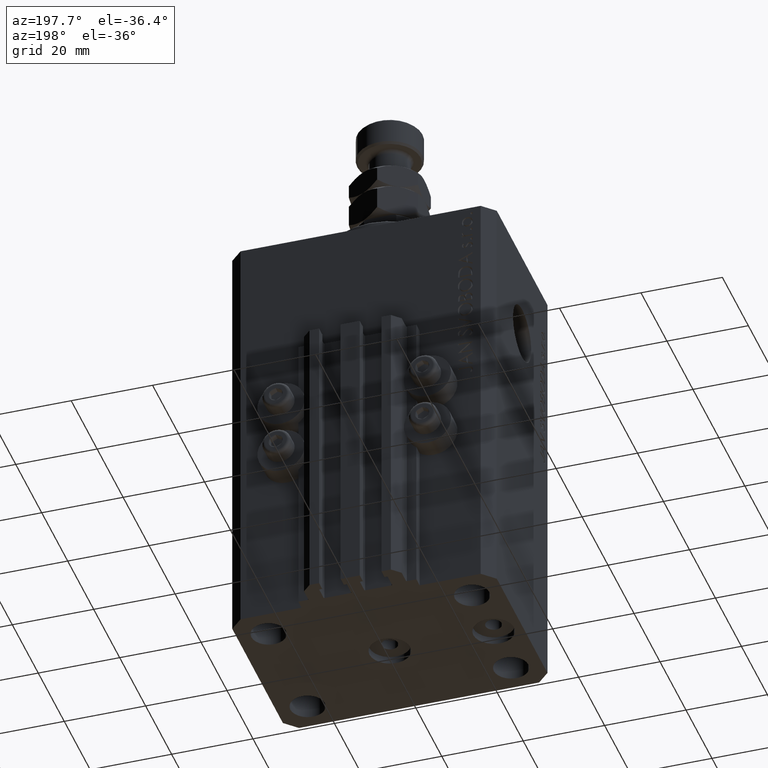
[diagram: clean part render]
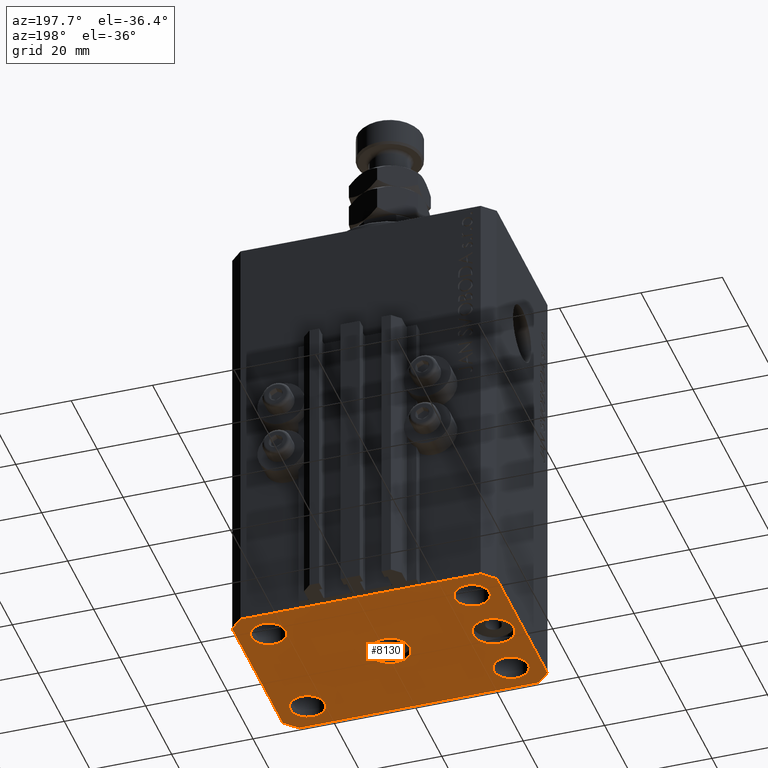
[diagram: same view with one face highlighted and labeled with its STEP entity id]
A machine part, auxiliary view. The second image highlights one B-rep face of the part: STEP entity #8130.
In plain terms, the highlighted planar face has unit normal (0, 0, 1).
Its self-contained STEP definition (entity closure, byte-faithful):
#422 = DIRECTION ( 'NONE',  ( 0.000000000000000000, 0.000000000000000000, -1.000000000000000000 ) ) ;
#424 = VECTOR ( 'NONE', #4902, 1000.000000000000000 ) ;
#497 = ORIENTED_EDGE ( 'NONE', *, *, #45855, .F. ) ;
#642 = AXIS2_PLACEMENT_3D ( 'NONE', #1286, #35193, #20351 ) ;
#889 = VERTEX_POINT ( 'NONE', #22023 ) ;
#1133 = EDGE_CURVE ( 'NONE', #28121, #46459, #36263, .T. ) ;
#1286 = CARTESIAN_POINT ( 'NONE',  ( 25.00000000000000000, 14.99999999999999289, -107.0000000000000000 ) ) ;
#1429 = CARTESIAN_POINT ( 'NONE',  ( 32.49999999999651124, -19.49999999999949196, -107.0000000000000000 ) ) ;
#2686 = AXIS2_PLACEMENT_3D ( 'NONE', #40889, #25792, #6989 ) ;
#2697 = CIRCLE ( 'NONE', #26411, 4.999999999996659561 ) ;
#2769 = CIRCLE ( 'NONE', #48605, 4.250000000021375790 ) ;
#2807 = VERTEX_POINT ( 'NONE', #6126 ) ;
#2899 = VERTEX_POINT ( 'NONE', #18471 ) ;
#2985 = ORIENTED_EDGE ( 'NONE', *, *, #37086, .F. ) ;
#3061 = DIRECTION ( 'NONE',  ( -1.000000000000000000, 0.000000000000000000, 0.000000000000000000 ) ) ;
#3132 = CARTESIAN_POINT ( 'NONE',  ( -32.49999999999650413, -19.49999999999949907, -107.0000000000000000 ) ) ;
#3505 = AXIS2_PLACEMENT_3D ( 'NONE', #26926, #31376, #12804 ) ;
#3514 = DIRECTION ( 'NONE',  ( -0.000000000000000000, -0.000000000000000000, -1.000000000000000000 ) ) ;
#3651 = PLANE ( 'NONE',  #16138 ) ;
#3761 = DIRECTION ( 'NONE',  ( 1.000000000000000000, 0.000000000000000000, 0.000000000000000000 ) ) ;
#4130 = DIRECTION ( 'NONE',  ( 1.000000000000000000, 0.000000000000000000, -0.000000000000000000 ) ) ;
#4237 = DIRECTION ( 'NONE',  ( -0.000000000000000000, -0.000000000000000000, -1.000000000000000000 ) ) ;
#4320 = CIRCLE ( 'NONE', #3505, 4.999999999996659561 ) ;
#4368 = LINE ( 'NONE', #46683, #36732 ) ;
#4391 = CARTESIAN_POINT ( 'NONE',  ( 0.000000000000000000, 0.000000000000000000, -107.0000000000000000 ) ) ;
#4505 = CARTESIAN_POINT ( 'NONE',  ( 29.49999999999650413, -22.49999999999949196, -107.0000000000000000 ) ) ;
#4902 = DIRECTION ( 'NONE',  ( -1.000000000000000000, -3.528251137580330676E-16, 0.000000000000000000 ) ) ;
#4973 = EDGE_LOOP ( 'NONE', ( #29562, #27575 ) ) ;
#5045 = ORIENTED_EDGE ( 'NONE', *, *, #11031, .F. ) ;
#5646 = DIRECTION ( 'NONE',  ( 1.000000000000000000, 0.000000000000000000, 0.000000000000000000 ) ) ;
#6082 = DIRECTION ( 'NONE',  ( 0.7071067811865483499, 0.7071067811865466846, 0.000000000000000000 ) ) ;
#6126 = CARTESIAN_POINT ( 'NONE',  ( -32.49999999999650413, 19.49999999999949907, -107.0000000000000000 ) ) ;
#6354 = LINE ( 'NONE', #16737, #6401 ) ;
#6401 = VECTOR ( 'NONE', #16980, 1000.000000000000000 ) ;
#6729 = VERTEX_POINT ( 'NONE', #27789 ) ;
#6989 = DIRECTION ( 'NONE',  ( 1.000000000000000000, 0.000000000000000000, 0.000000000000000000 ) ) ;
#7362 = FACE_BOUND ( 'NONE', #48224, .T. ) ;
#7616 = FACE_BOUND ( 'NONE', #44017, .T. ) ;
#7667 = EDGE_LOOP ( 'NONE', ( #8278, #16094 ) ) ;
#7860 = FACE_BOUND ( 'NONE', #4973, .T. ) ;
#8130 = ADVANCED_FACE ( 'NONE', ( #22704, #7860, #44990, #37557, #7616, #7362, #22939 ), #3651, .F. ) ;
#8278 = ORIENTED_EDGE ( 'NONE', *, *, #10065, .F. ) ;
#9142 = CIRCLE ( 'NONE', #9931, 4.250000000040370374 ) ;
#9931 = AXIS2_PLACEMENT_3D ( 'NONE', #38184, #11472, #45377 ) ;
#9990 = ORIENTED_EDGE ( 'NONE', *, *, #31014, .F. ) ;
#10065 = EDGE_CURVE ( 'NONE', #24839, #14363, #39554, .T. ) ;
#10337 = CARTESIAN_POINT ( 'NONE',  ( 32.49999999999702993, 19.49999999999945999, -107.0000000000000000 ) ) ;
#10344 = AXIS2_PLACEMENT_3D ( 'NONE', #4391, #422, #26905 ) ;
#10517 = CARTESIAN_POINT ( 'NONE',  ( 29.49999999999707967, 22.49999999999952038, -107.0000000000000000 ) ) ;
#10667 = VERTEX_POINT ( 'NONE', #25763 ) ;
#10959 = DIRECTION ( 'NONE',  ( 0.000000000000000000, 0.000000000000000000, -1.000000000000000000 ) ) ;
#11031 = EDGE_CURVE ( 'NONE', #889, #37878, #37993, .T. ) ;
#11076 = DIRECTION ( 'NONE',  ( 0.000000000000000000, 0.000000000000000000, 1.000000000000000000 ) ) ;
#11234 = CARTESIAN_POINT ( 'NONE',  ( -29.25000000002137668, 14.99999999999999645, -107.0000000000000000 ) ) ;
#11288 = LINE ( 'NONE', #3132, #30432 ) ;
#11353 = CIRCLE ( 'NONE', #20035, 4.249999999957291053 ) ;
#11444 = ORIENTED_EDGE ( 'NONE', *, *, #46043, .F. ) ;
#11472 = DIRECTION ( 'NONE',  ( -0.000000000000000000, -0.000000000000000000, -1.000000000000000000 ) ) ;
#12068 = CARTESIAN_POINT ( 'NONE',  ( -30.49999999999665690, 0.000000000000000000, -107.0000000000000000 ) ) ;
#12804 = DIRECTION ( 'NONE',  ( -1.000000000000000000, 0.000000000000000000, 0.000000000000000000 ) ) ;
#13558 = EDGE_CURVE ( 'NONE', #47391, #36028, #4320, .T. ) ;
#14184 = CARTESIAN_POINT ( 'NONE',  ( 0.000000000000000000, 0.000000000000000000, -107.0000000000000000 ) ) ;
#14363 = VERTEX_POINT ( 'NONE', #34969 ) ;
#14578 = CARTESIAN_POINT ( 'NONE',  ( 20.75000000004271072, 14.99999999999999289, -107.0000000000000000 ) ) ;
#14686 = VECTOR ( 'NONE', #36832, 1000.000000000000000 ) ;
#15886 = EDGE_CURVE ( 'NONE', #46459, #48554, #6354, .T. ) ;
#16087 = CARTESIAN_POINT ( 'NONE',  ( -29.49999999999650413, -22.49999999999949907, -107.0000000000000000 ) ) ;
#16094 = ORIENTED_EDGE ( 'NONE', *, *, #17459, .F. ) ;
#16127 = VECTOR ( 'NONE', #36372, 1000.000000000000000 ) ;
#16138 = AXIS2_PLACEMENT_3D ( 'NONE', #26892, #11076, #4130 ) ;
#16380 = ORIENTED_EDGE ( 'NONE', *, *, #42323, .F. ) ;
#16505 = ORIENTED_EDGE ( 'NONE', *, *, #31089, .F. ) ;
#16560 = CARTESIAN_POINT ( 'NONE',  ( -29.49999999999650413, 22.49999999999949907, -107.0000000000000000 ) ) ;
#16737 = CARTESIAN_POINT ( 'NONE',  ( 32.49999999999651124, -19.49999999999949196, -107.0000000000000000 ) ) ;
#16770 = CARTESIAN_POINT ( 'NONE',  ( 25.00000000000000000, 14.99999999999999289, -107.0000000000000000 ) ) ;
#16980 = DIRECTION ( 'NONE',  ( 1.334402673828349134E-14, 1.000000000000000000, 0.000000000000000000 ) ) ;
#17459 = EDGE_CURVE ( 'NONE', #14363, #24839, #29586, .T. ) ;
#17782 = EDGE_LOOP ( 'NONE', ( #36913, #5045 ) ) ;
#18471 = CARTESIAN_POINT ( 'NONE',  ( 29.24999999995729283, 14.99999999999999289, -107.0000000000000000 ) ) ;
#18864 = DIRECTION ( 'NONE',  ( -1.000000000000000000, 0.000000000000000000, 0.000000000000000000 ) ) ;
#20035 = AXIS2_PLACEMENT_3D ( 'NONE', #16770, #38821, #5646 ) ;
#20087 = AXIS2_PLACEMENT_3D ( 'NONE', #14184, #10959, #18864 ) ;
#20351 = DIRECTION ( 'NONE',  ( 1.000000000000000000, 0.000000000000000000, 0.000000000000000000 ) ) ;
#20707 = EDGE_LOOP ( 'NONE', ( #21821, #11444 ) ) ;
#21096 = ORIENTED_EDGE ( 'NONE', *, *, #36325, .F. ) ;
#21238 = EDGE_CURVE ( 'NONE', #6729, #41279, #9142, .T. ) ;
#21649 = VECTOR ( 'NONE', #29363, 1000.000000000000114 ) ;
#21821 = ORIENTED_EDGE ( 'NONE', *, *, #21238, .F. ) ;
#22023 = CARTESIAN_POINT ( 'NONE',  ( 5.000000000000000000, 6.123233995736765296E-16, -107.0000000000000000 ) ) ;
#22704 = FACE_BOUND ( 'NONE', #17782, .T. ) ;
#22809 = CARTESIAN_POINT ( 'NONE',  ( -24.99999999999999289, -15.00000000000000355, -107.0000000000000000 ) ) ;
#22939 = FACE_OUTER_BOUND ( 'NONE', #36845, .T. ) ;
#23506 = EDGE_CURVE ( 'NONE', #2899, #29059, #25144, .T. ) ;
#23682 = VERTEX_POINT ( 'NONE', #16560 ) ;
#23711 = CARTESIAN_POINT ( 'NONE',  ( 29.49999999999707967, 22.49999999999952038, -107.0000000000000000 ) ) ;
#24250 = DIRECTION ( 'NONE',  ( -0.000000000000000000, -0.000000000000000000, -1.000000000000000000 ) ) ;
#24494 = CARTESIAN_POINT ( 'NONE',  ( 29.24999999997631051, -15.00000000000000355, -107.0000000000000000 ) ) ;
#24787 = EDGE_CURVE ( 'NONE', #32062, #25263, #28200, .T. ) ;
#24839 = VERTEX_POINT ( 'NONE', #24494 ) ;
#25129 = CARTESIAN_POINT ( 'NONE',  ( 29.49999999999650413, -22.49999999999949196, -107.0000000000000000 ) ) ;
#25144 = CIRCLE ( 'NONE', #642, 4.249999999957291053 ) ;
#25263 = VERTEX_POINT ( 'NONE', #11234 ) ;
#25763 = CARTESIAN_POINT ( 'NONE',  ( -32.49999999999650413, -19.49999999999949907, -107.0000000000000000 ) ) ;
#25792 = DIRECTION ( 'NONE',  ( -0.000000000000000000, -0.000000000000000000, -1.000000000000000000 ) ) ;
#25975 = CARTESIAN_POINT ( 'NONE',  ( -29.25000000004036593, -15.00000000000000355, -107.0000000000000000 ) ) ;
#26411 = AXIS2_PLACEMENT_3D ( 'NONE', #33005, #29784, #3061 ) ;
#26653 = VERTEX_POINT ( 'NONE', #16087 ) ;
#26721 = CARTESIAN_POINT ( 'NONE',  ( 24.99999999999999289, -15.00000000000000355, -107.0000000000000000 ) ) ;
#26892 = CARTESIAN_POINT ( 'NONE',  ( 0.000000000000000000, 0.000000000000000000, -107.0000000000000000 ) ) ;
#26905 = DIRECTION ( 'NONE',  ( -1.000000000000000000, 0.000000000000000000, 0.000000000000000000 ) ) ;
#26926 = CARTESIAN_POINT ( 'NONE',  ( -25.50000000000000000, 0.000000000000000000, -107.0000000000000000 ) ) ;
#27044 = VERTEX_POINT ( 'NONE', #10517 ) ;
#27544 = VECTOR ( 'NONE', #6082, 1000.000000000000000 ) ;
#27575 = ORIENTED_EDGE ( 'NONE', *, *, #13558, .F. ) ;
#27789 = CARTESIAN_POINT ( 'NONE',  ( -20.74999999995962341, -15.00000000000000355, -107.0000000000000000 ) ) ;
#27859 = DIRECTION ( 'NONE',  ( 0.000000000000000000, -1.000000000000000000, 0.000000000000000000 ) ) ;
#28121 = VERTEX_POINT ( 'NONE', #4505 ) ;
#28200 = CIRCLE ( 'NONE', #31381, 4.250000000021375790 ) ;
#28589 = CARTESIAN_POINT ( 'NONE',  ( 32.49999999999702993, 19.49999999999945999, -107.0000000000000000 ) ) ;
#29059 = VERTEX_POINT ( 'NONE', #14578 ) ;
#29363 = DIRECTION ( 'NONE',  ( -0.7071067811865474617, -0.7071067811865474617, 0.000000000000000000 ) ) ;
#29458 = ORIENTED_EDGE ( 'NONE', *, *, #1133, .F. ) ;
#29562 = ORIENTED_EDGE ( 'NONE', *, *, #37338, .F. ) ;
#29586 = CIRCLE ( 'NONE', #2686, 4.249999999976314058 ) ;
#29624 = CARTESIAN_POINT ( 'NONE',  ( -29.49999999999650413, -22.49999999999949907, -107.0000000000000000 ) ) ;
#29625 = CIRCLE ( 'NONE', #43047, 4.250000000040370374 ) ;
#29784 = DIRECTION ( 'NONE',  ( 0.000000000000000000, 0.000000000000000000, -1.000000000000000000 ) ) ;
#30421 = DIRECTION ( 'NONE',  ( 1.000000000000000000, 0.000000000000000000, 0.000000000000000000 ) ) ;
#30429 = ORIENTED_EDGE ( 'NONE', *, *, #23506, .F. ) ;
#30432 = VECTOR ( 'NONE', #33322, 1000.000000000000114 ) ;
#30971 = ORIENTED_EDGE ( 'NONE', *, *, #24787, .F. ) ;
#31014 = EDGE_CURVE ( 'NONE', #27044, #23682, #35091, .T. ) ;
#31089 = EDGE_CURVE ( 'NONE', #48554, #27044, #37069, .T. ) ;
#31123 = CIRCLE ( 'NONE', #20087, 5.000000000000000000 ) ;
#31376 = DIRECTION ( 'NONE',  ( 0.000000000000000000, 0.000000000000000000, -1.000000000000000000 ) ) ;
#31381 = AXIS2_PLACEMENT_3D ( 'NONE', #31438, #24250, #39353 ) ;
#31438 = CARTESIAN_POINT ( 'NONE',  ( -25.00000000000000000, 14.99999999999999645, -107.0000000000000000 ) ) ;
#31755 = ORIENTED_EDGE ( 'NONE', *, *, #15886, .F. ) ;
#32062 = VERTEX_POINT ( 'NONE', #44622 ) ;
#32226 = ORIENTED_EDGE ( 'NONE', *, *, #40428, .F. ) ;
#32406 = CARTESIAN_POINT ( 'NONE',  ( -5.000000000000000000, 0.000000000000000000, -107.0000000000000000 ) ) ;
#33005 = CARTESIAN_POINT ( 'NONE',  ( -25.50000000000000000, 0.000000000000000000, -107.0000000000000000 ) ) ;
#33322 = DIRECTION ( 'NONE',  ( 0.7071067811865474617, -0.7071067811865474617, 0.000000000000000000 ) ) ;
#34969 = CARTESIAN_POINT ( 'NONE',  ( 20.75000000002367884, -15.00000000000000355, -107.0000000000000000 ) ) ;
#35091 = LINE ( 'NONE', #23711, #424 ) ;
#35193 = DIRECTION ( 'NONE',  ( -0.000000000000000000, -0.000000000000000000, -1.000000000000000000 ) ) ;
#36028 = VERTEX_POINT ( 'NONE', #12068 ) ;
#36057 = LINE ( 'NONE', #36550, #21649 ) ;
#36263 = LINE ( 'NONE', #25129, #27544 ) ;
#36325 = EDGE_CURVE ( 'NONE', #23682, #2807, #36057, .T. ) ;
#36372 = DIRECTION ( 'NONE',  ( 1.000000000000000000, 1.176083712526788232E-16, 0.000000000000000000 ) ) ;
#36550 = CARTESIAN_POINT ( 'NONE',  ( -29.49999999999650413, 22.49999999999949907, -107.0000000000000000 ) ) ;
#36732 = VECTOR ( 'NONE', #27859, 1000.000000000000000 ) ;
#36832 = DIRECTION ( 'NONE',  ( -0.7071067811865344721, 0.7071067811865606734, 0.000000000000000000 ) ) ;
#36845 = EDGE_LOOP ( 'NONE', ( #9990, #16505, #31755, #29458, #2985, #32226, #36987, #21096 ) ) ;
#36913 = ORIENTED_EDGE ( 'NONE', *, *, #43311, .F. ) ;
#36987 = ORIENTED_EDGE ( 'NONE', *, *, #38950, .F. ) ;
#37069 = LINE ( 'NONE', #10337, #14686 ) ;
#37086 = EDGE_CURVE ( 'NONE', #26653, #28121, #44736, .T. ) ;
#37338 = EDGE_CURVE ( 'NONE', #36028, #47391, #2697, .T. ) ;
#37421 = CARTESIAN_POINT ( 'NONE',  ( -25.00000000000000000, 14.99999999999999645, -107.0000000000000000 ) ) ;
#37557 = FACE_BOUND ( 'NONE', #7667, .T. ) ;
#37878 = VERTEX_POINT ( 'NONE', #32406 ) ;
#37993 = CIRCLE ( 'NONE', #10344, 5.000000000000000000 ) ;
#38184 = CARTESIAN_POINT ( 'NONE',  ( -24.99999999999999289, -15.00000000000000355, -107.0000000000000000 ) ) ;
#38821 = DIRECTION ( 'NONE',  ( -0.000000000000000000, -0.000000000000000000, -1.000000000000000000 ) ) ;
#38950 = EDGE_CURVE ( 'NONE', #2807, #10667, #4368, .T. ) ;
#39353 = DIRECTION ( 'NONE',  ( 1.000000000000000000, 0.000000000000000000, 0.000000000000000000 ) ) ;
#39554 = CIRCLE ( 'NONE', #40447, 4.249999999976314058 ) ;
#40056 = CARTESIAN_POINT ( 'NONE',  ( -20.50000000000333955, 6.123233995732674066E-16, -107.0000000000000000 ) ) ;
#40428 = EDGE_CURVE ( 'NONE', #10667, #26653, #11288, .T. ) ;
#40447 = AXIS2_PLACEMENT_3D ( 'NONE', #26721, #42048, #30421 ) ;
#40650 = DIRECTION ( 'NONE',  ( 1.000000000000000000, 0.000000000000000000, 0.000000000000000000 ) ) ;
#40889 = CARTESIAN_POINT ( 'NONE',  ( 24.99999999999999289, -15.00000000000000355, -107.0000000000000000 ) ) ;
#41279 = VERTEX_POINT ( 'NONE', #25975 ) ;
#42048 = DIRECTION ( 'NONE',  ( -0.000000000000000000, -0.000000000000000000, -1.000000000000000000 ) ) ;
#42323 = EDGE_CURVE ( 'NONE', #29059, #2899, #11353, .T. ) ;
#43047 = AXIS2_PLACEMENT_3D ( 'NONE', #22809, #4237, #3761 ) ;
#43311 = EDGE_CURVE ( 'NONE', #37878, #889, #31123, .T. ) ;
#44017 = EDGE_LOOP ( 'NONE', ( #30429, #16380 ) ) ;
#44622 = CARTESIAN_POINT ( 'NONE',  ( -20.74999999997862687, 14.99999999999999645, -107.0000000000000000 ) ) ;
#44736 = LINE ( 'NONE', #29624, #16127 ) ;
#44990 = FACE_BOUND ( 'NONE', #20707, .T. ) ;
#45377 = DIRECTION ( 'NONE',  ( 1.000000000000000000, 0.000000000000000000, 0.000000000000000000 ) ) ;
#45855 = EDGE_CURVE ( 'NONE', #25263, #32062, #2769, .T. ) ;
#46043 = EDGE_CURVE ( 'NONE', #41279, #6729, #29625, .T. ) ;
#46459 = VERTEX_POINT ( 'NONE', #1429 ) ;
#46683 = CARTESIAN_POINT ( 'NONE',  ( -32.49999999999650413, 19.49999999999949907, -107.0000000000000000 ) ) ;
#47391 = VERTEX_POINT ( 'NONE', #40056 ) ;
#48224 = EDGE_LOOP ( 'NONE', ( #30971, #497 ) ) ;
#48554 = VERTEX_POINT ( 'NONE', #28589 ) ;
#48605 = AXIS2_PLACEMENT_3D ( 'NONE', #37421, #3514, #40650 ) ;